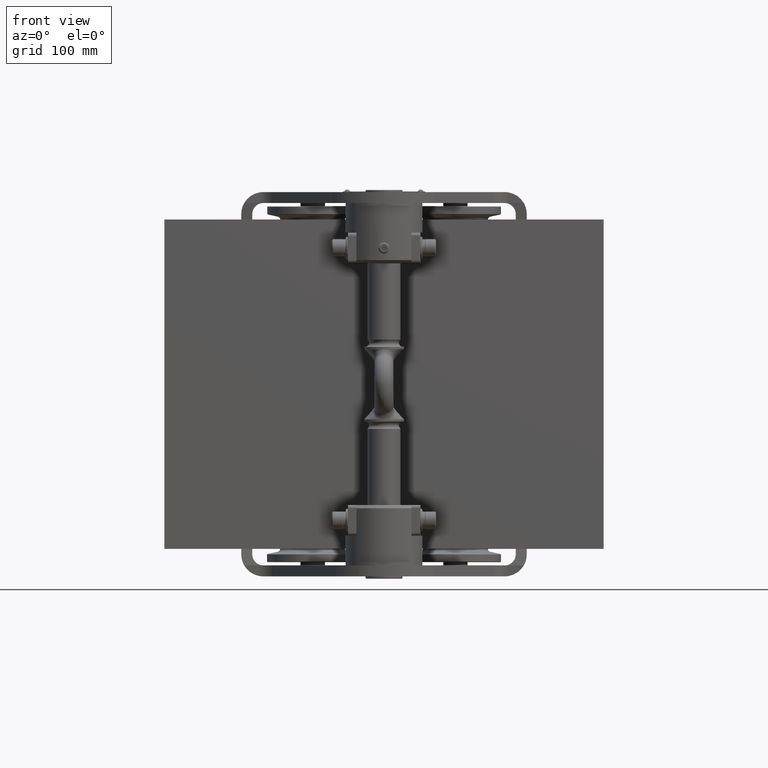
[diagram: clean part render]
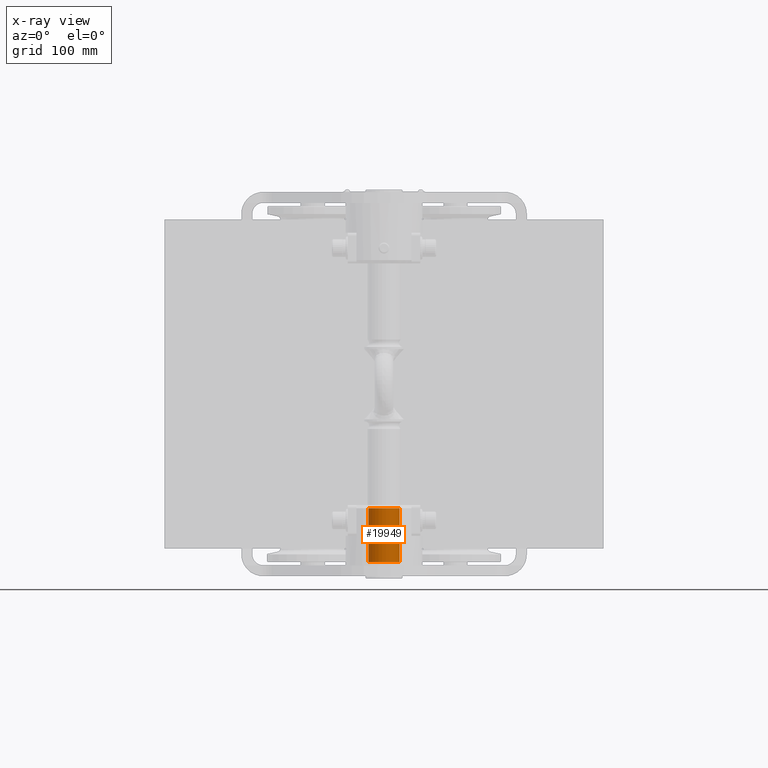
[diagram: x-ray — body ghosted, one internal face saturated and labeled with its STEP entity id]
A machine part, front view, then the same camera in x-ray: the body is ghosted and one INTERNAL B-rep face — a face not visible from any outside direction — is saturated and labeled: STEP entity #19949.
In plain terms, the highlighted cylindrical surface (edge-blend (fillet) strip) has radius 14.25 mm, axis along (-0, 0, -1).
Its self-contained STEP definition (entity closure, byte-faithful):
#1850 = DIRECTION ( 'NONE',  ( -4.690842490996000900E-017, 9.340314967698498500E-018, -1.000000000000000000 ) ) ;
#2716 = DIRECTION ( 'NONE',  ( 4.690842490996000900E-017, -9.340314967698498500E-018, 1.000000000000000000 ) ) ;
#3171 = VECTOR ( 'NONE', #20818, 1000.000000000000000 ) ;
#4411 = VECTOR ( 'NONE', #21297, 1000.000000000000000 ) ;
#5032 = ORIENTED_EDGE ( 'NONE', *, *, #41661, .T. ) ;
#6584 = EDGE_LOOP ( 'NONE', ( #26503, #10141, #5032, #20011 ) ) ;
#9639 = CYLINDRICAL_SURFACE ( 'NONE', #42133, 14.24999999999999300 ) ;
#9862 = DIRECTION ( 'NONE',  ( -1.000000000000000000, 0.0000000000000000000, 0.0000000000000000000 ) ) ;
#10141 = ORIENTED_EDGE ( 'NONE', *, *, #35640, .T. ) ;
#15904 = DIRECTION ( 'NONE',  ( -1.000000000000000000, 0.0000000000000000000, 0.0000000000000000000 ) ) ;
#16624 = CARTESIAN_POINT ( 'NONE',  ( -1.172501263835280600E-014, -210.9999999999999700, -161.9999999999999700 ) ) ;
#19514 = VERTEX_POINT ( 'NONE', #24708 ) ;
#19949 = ADVANCED_FACE ( 'NONE', ( #37544 ), #9639, .F. ) ;
#20011 = ORIENTED_EDGE ( 'NONE', *, *, #37647, .F. ) ;
#20030 = EDGE_CURVE ( 'NONE', #46076, #19514, #43991, .T. ) ;
#20585 = DIRECTION ( 'NONE',  ( -4.690842490996000900E-017, 9.340314967698498500E-018, -1.000000000000000000 ) ) ;
#20600 = VERTEX_POINT ( 'NONE', #52674 ) ;
#20818 = DIRECTION ( 'NONE',  ( -4.690842490996000900E-017, 9.340314967698498500E-018, -1.000000000000000000 ) ) ;
#21176 = CARTESIAN_POINT ( 'NONE',  ( 14.24999999999998200, -210.9999999999999700, -165.0000000000000000 ) ) ;
#21297 = DIRECTION ( 'NONE',  ( -4.690842490996000900E-017, 9.340314967698498500E-018, -1.000000000000000000 ) ) ;
#21983 = CIRCLE ( 'NONE', #49901, 14.24999999999999300 ) ;
#24708 = CARTESIAN_POINT ( 'NONE',  ( 14.24999999999998200, -210.9999999999999700, -113.0000000000000100 ) ) ;
#26503 = ORIENTED_EDGE ( 'NONE', *, *, #20030, .T. ) ;
#27124 = CARTESIAN_POINT ( 'NONE',  ( -1.186573791308268500E-014, -210.9999999999999700, -165.0000000000000000 ) ) ;
#31441 = AXIS2_PLACEMENT_3D ( 'NONE', #48738, #2716, #52563 ) ;
#35640 = EDGE_CURVE ( 'NONE', #19514, #46822, #48718, .T. ) ;
#37544 = FACE_OUTER_BOUND ( 'NONE', #6584, .T. ) ;
#37551 = CARTESIAN_POINT ( 'NONE',  ( -14.25000000000000200, -210.9999999999999700, -113.0000000000000100 ) ) ;
#37647 = EDGE_CURVE ( 'NONE', #46076, #20600, #48655, .T. ) ;
#41224 = CARTESIAN_POINT ( 'NONE',  ( -14.25000000000000500, -210.9999999999999700, -165.0000000000000000 ) ) ;
#41661 = EDGE_CURVE ( 'NONE', #46822, #20600, #21983, .T. ) ;
#41916 = CARTESIAN_POINT ( 'NONE',  ( 14.24999999999997900, -210.9999999999999700, -161.9999999999999700 ) ) ;
#42133 = AXIS2_PLACEMENT_3D ( 'NONE', #27124, #1850, #9862 ) ;
#43991 = CIRCLE ( 'NONE', #31441, 14.24999999999999300 ) ;
#46076 = VERTEX_POINT ( 'NONE', #37551 ) ;
#46822 = VERTEX_POINT ( 'NONE', #41916 ) ;
#48655 = LINE ( 'NONE', #41224, #4411 ) ;
#48718 = LINE ( 'NONE', #21176, #3171 ) ;
#48738 = CARTESIAN_POINT ( 'NONE',  ( -9.426499817764765500E-015, -210.9999999999999700, -113.0000000000000100 ) ) ;
#49901 = AXIS2_PLACEMENT_3D ( 'NONE', #16624, #20585, #15904 ) ;
#52563 = DIRECTION ( 'NONE',  ( -1.000000000000000000, 0.0000000000000000000, 0.0000000000000000000 ) ) ;
#52674 = CARTESIAN_POINT ( 'NONE',  ( -14.25000000000000500, -210.9999999999999700, -161.9999999999999700 ) ) ;